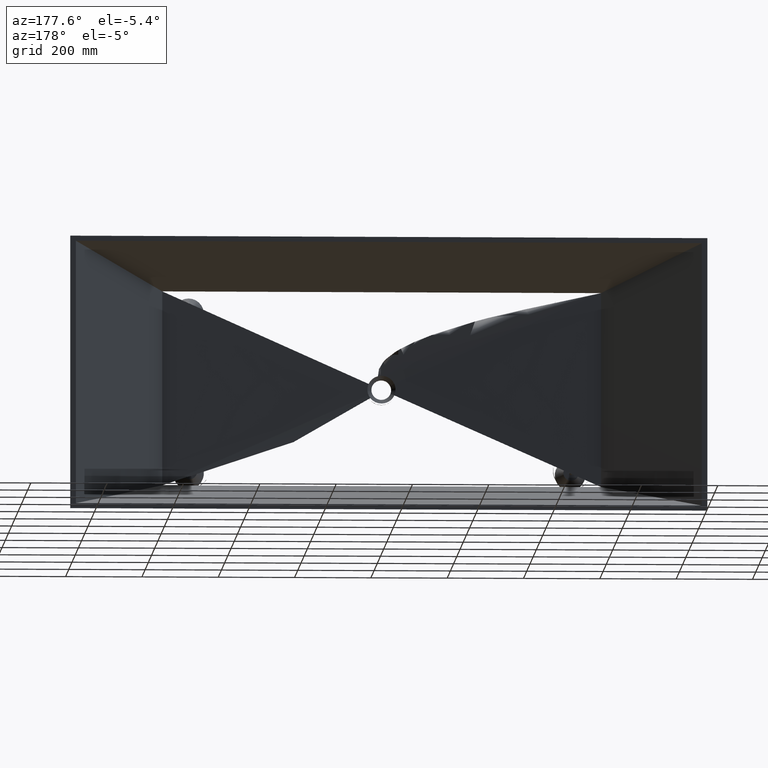
[diagram: clean part render]
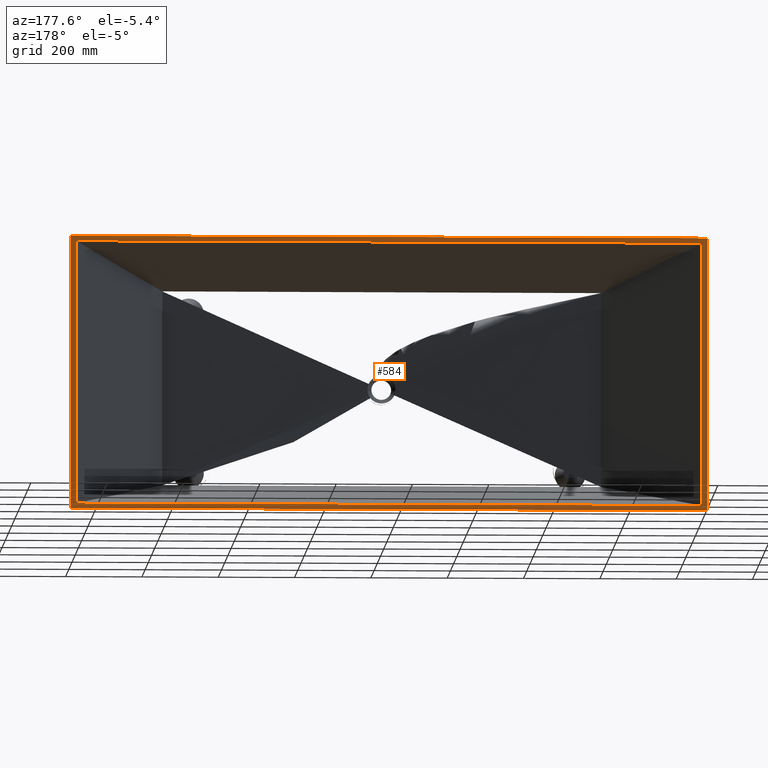
[diagram: same view with one face highlighted and labeled with its STEP entity id]
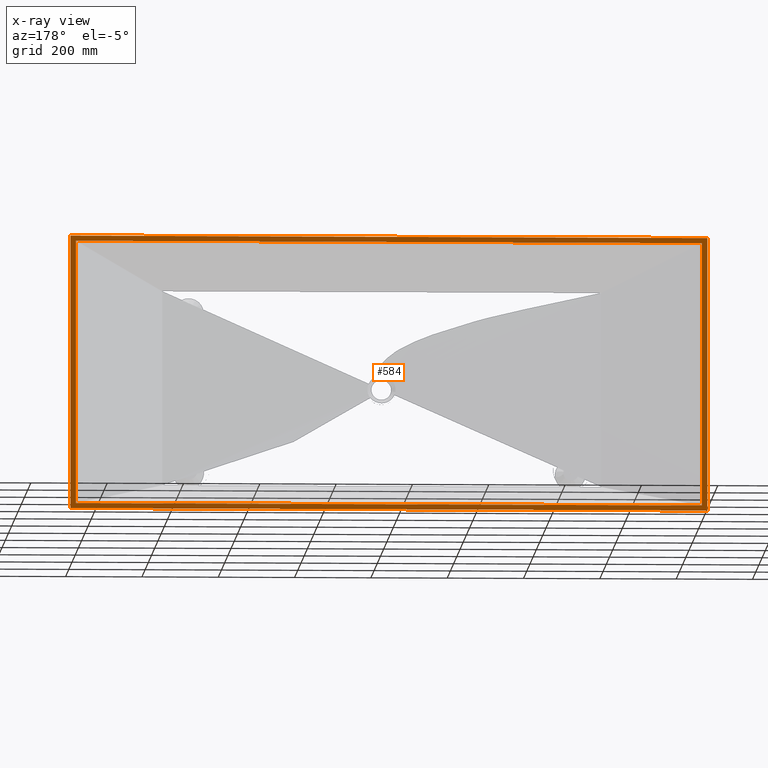
[diagram: x-ray of the same camera — body ghosted, the highlighted face saturated]
A machine part, auxiliary view. The second image highlights one B-rep face of the part: STEP entity #584.
The next image is the same camera in x-ray: the body ghosted, the highlighted face saturated — about 0% of this face is hidden behind the body in this view.
In plain terms, the highlighted planar face has unit normal (0, -1, 0).
Its self-contained STEP definition (entity closure, byte-faithful):
#4 = DIRECTION ( 'NONE',  ( 0.0000000000000000000, -0.0000000000000000000, -1.000000000000000000 ) ) ;
#20 = VECTOR ( 'NONE', #7489, 1000.000000000000000 ) ;
#152 = PLANE ( 'NONE',  #1866 ) ;
#240 = EDGE_CURVE ( 'NONE', #670, #4843, #1857, .T. ) ;
#358 = EDGE_CURVE ( 'NONE', #3634, #3999, #1732, .T. ) ;
#503 = EDGE_CURVE ( 'NONE', #4520, #3634, #1230, .T. ) ;
#584 = ADVANCED_FACE ( 'NONE', ( #966, #962 ), #152, .F. ) ;
#632 = LINE ( 'NONE', #6709, #1634 ) ;
#656 = CARTESIAN_POINT ( 'NONE',  ( -14.81699068267997900, 0.0000000000000000000, 13.25973196820439700 ) ) ;
#670 = VERTEX_POINT ( 'NONE', #3414 ) ;
#831 = CARTESIAN_POINT ( 'NONE',  ( 1640.000000000000000, 0.0000000000000000000, 0.0000000000000000000 ) ) ;
#962 = FACE_BOUND ( 'NONE', #1490, .T. ) ;
#966 = FACE_OUTER_BOUND ( 'NONE', #5925, .T. ) ;
#1150 = VECTOR ( 'NONE', #6579, 1000.000000000000000 ) ;
#1230 = LINE ( 'NONE', #7191, #1150 ) ;
#1249 = ORIENTED_EDGE ( 'NONE', *, *, #5254, .T. ) ;
#1294 = CARTESIAN_POINT ( 'NONE',  ( 1395.000000000000000, 0.0000000000000000000, -703.2597319682043900 ) ) ;
#1321 = DIRECTION ( 'NONE',  ( -1.000000000000000000, 0.0000000000000000000, 0.0000000000000000000 ) ) ;
#1490 = EDGE_LOOP ( 'NONE', ( #4329, #6171, #4194, #4173 ) ) ;
#1634 = VECTOR ( 'NONE', #6878, 1000.000000000000000 ) ;
#1709 = DIRECTION ( 'NONE',  ( -1.000000000000000000, -0.0000000000000000000, -0.0000000000000000000 ) ) ;
#1732 = LINE ( 'NONE', #1294, #2157 ) ;
#1857 = LINE ( 'NONE', #2412, #1921 ) ;
#1866 = AXIS2_PLACEMENT_3D ( 'NONE', #1903, #1950, #4 ) ;
#1903 = CARTESIAN_POINT ( 'NONE',  ( 0.0000000000000000000, 0.0000000000000000000, -690.0000000000000000 ) ) ;
#1921 = VECTOR ( 'NONE', #1709, 1000.000000000000000 ) ;
#1950 = DIRECTION ( 'NONE',  ( 0.0000000000000000000, -1.000000000000000000, 0.0000000000000000000 ) ) ;
#2157 = VECTOR ( 'NONE', #1321, 1000.000000000000000 ) ;
#2368 = DIRECTION ( 'NONE',  ( 1.000000000000000000, 0.0000000000000000000, 0.0000000000000000000 ) ) ;
#2412 = CARTESIAN_POINT ( 'NONE',  ( 0.0000000000000000000, 0.0000000000000000000, -690.0000000000000000 ) ) ;
#2520 = DIRECTION ( 'NONE',  ( 0.0000000000000000000, 0.0000000000000000000, -1.000000000000000000 ) ) ;
#2551 = CARTESIAN_POINT ( 'NONE',  ( 1640.000000000000000, 0.0000000000000000000, 0.0000000000000000000 ) ) ;
#2585 = VERTEX_POINT ( 'NONE', #656 ) ;
#2722 = CARTESIAN_POINT ( 'NONE',  ( 244.9999999999998900, 0.0000000000000000000, 13.25973196820441700 ) ) ;
#2781 = CARTESIAN_POINT ( 'NONE',  ( 0.0000000000000000000, 0.0000000000000000000, 0.0000000000000000000 ) ) ;
#3340 = CARTESIAN_POINT ( 'NONE',  ( 1654.816990682679900, 0.0000000000000000000, -703.2597319682043900 ) ) ;
#3414 = CARTESIAN_POINT ( 'NONE',  ( 1639.999999999999100, 0.0000000000000000000, -690.0000000000000000 ) ) ;
#3589 = CARTESIAN_POINT ( 'NONE',  ( 0.0000000000000000000, 0.0000000000000000000, -690.0000000000000000 ) ) ;
#3634 = VERTEX_POINT ( 'NONE', #3340 ) ;
#3712 = VECTOR ( 'NONE', #2520, 1000.000000000000000 ) ;
#3999 = VERTEX_POINT ( 'NONE', #7456 ) ;
#4114 = EDGE_CURVE ( 'NONE', #4843, #6995, #6474, .T. ) ;
#4173 = ORIENTED_EDGE ( 'NONE', *, *, #6769, .F. ) ;
#4189 = EDGE_CURVE ( 'NONE', #3999, #2585, #632, .T. ) ;
#4194 = ORIENTED_EDGE ( 'NONE', *, *, #7182, .F. ) ;
#4329 = ORIENTED_EDGE ( 'NONE', *, *, #4114, .F. ) ;
#4520 = VERTEX_POINT ( 'NONE', #4931 ) ;
#4843 = VERTEX_POINT ( 'NONE', #3589 ) ;
#4859 = ORIENTED_EDGE ( 'NONE', *, *, #503, .T. ) ;
#4931 = CARTESIAN_POINT ( 'NONE',  ( 1654.816990682679900, 0.0000000000000000000, 13.25973196820439700 ) ) ;
#5094 = LINE ( 'NONE', #7526, #20 ) ;
#5254 = EDGE_CURVE ( 'NONE', #2585, #4520, #6841, .T. ) ;
#5351 = VECTOR ( 'NONE', #6938, 1000.000000000000000 ) ;
#5925 = EDGE_LOOP ( 'NONE', ( #7468, #1249, #4859, #6660 ) ) ;
#6171 = ORIENTED_EDGE ( 'NONE', *, *, #240, .F. ) ;
#6394 = VECTOR ( 'NONE', #2368, 1000.000000000000000 ) ;
#6474 = LINE ( 'NONE', #6961, #5351 ) ;
#6579 = DIRECTION ( 'NONE',  ( 0.0000000000000000000, 0.0000000000000000000, -1.000000000000000000 ) ) ;
#6660 = ORIENTED_EDGE ( 'NONE', *, *, #358, .T. ) ;
#6709 = CARTESIAN_POINT ( 'NONE',  ( -14.81699068267999800, 5.551115123125782700E-014, -599.9999999999997700 ) ) ;
#6769 = EDGE_CURVE ( 'NONE', #6995, #7460, #5094, .T. ) ;
#6841 = LINE ( 'NONE', #2722, #6394 ) ;
#6878 = DIRECTION ( 'NONE',  ( 0.0000000000000000000, 0.0000000000000000000, 1.000000000000000000 ) ) ;
#6938 = DIRECTION ( 'NONE',  ( -0.0000000000000000000, -0.0000000000000000000, 1.000000000000000000 ) ) ;
#6961 = CARTESIAN_POINT ( 'NONE',  ( 0.0000000000000000000, 0.0000000000000000000, 0.0000000000000000000 ) ) ;
#6995 = VERTEX_POINT ( 'NONE', #2781 ) ;
#7182 = EDGE_CURVE ( 'NONE', #7460, #670, #7419, .T. ) ;
#7191 = CARTESIAN_POINT ( 'NONE',  ( 1654.816990682679900, 5.551115123125782700E-014, -89.99999999999974400 ) ) ;
#7419 = LINE ( 'NONE', #2551, #3712 ) ;
#7456 = CARTESIAN_POINT ( 'NONE',  ( -14.81699068267997900, 0.0000000000000000000, -703.2597319682043900 ) ) ;
#7460 = VERTEX_POINT ( 'NONE', #831 ) ;
#7468 = ORIENTED_EDGE ( 'NONE', *, *, #4189, .T. ) ;
#7489 = DIRECTION ( 'NONE',  ( 1.000000000000000000, 0.0000000000000000000, 0.0000000000000000000 ) ) ;
#7526 = CARTESIAN_POINT ( 'NONE',  ( 0.0000000000000000000, 0.0000000000000000000, 0.0000000000000000000 ) ) ;